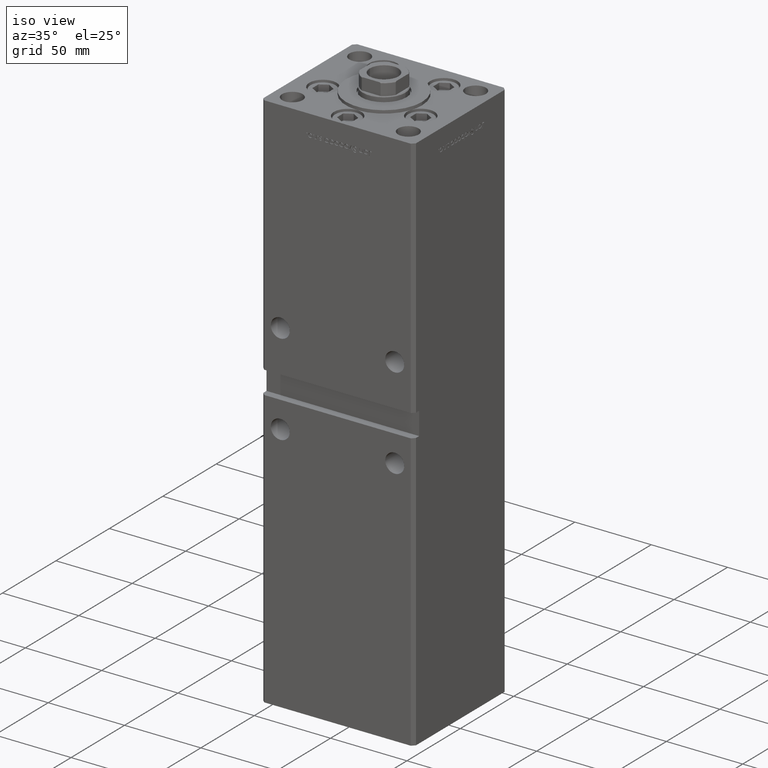
[diagram: clean part render]
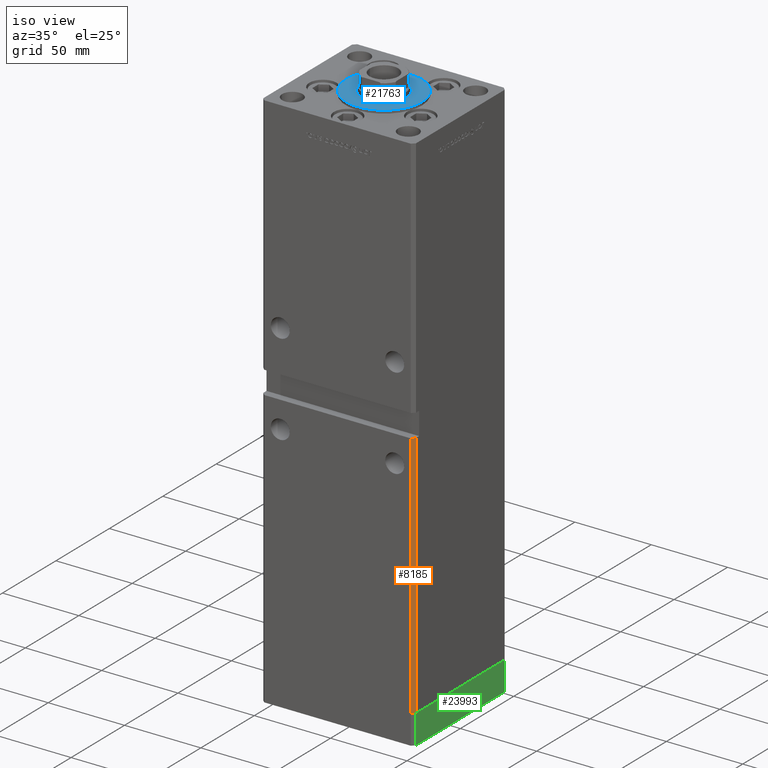
[diagram: same view with three faces highlighted in distinct colors, each labeled with its STEP entity id]
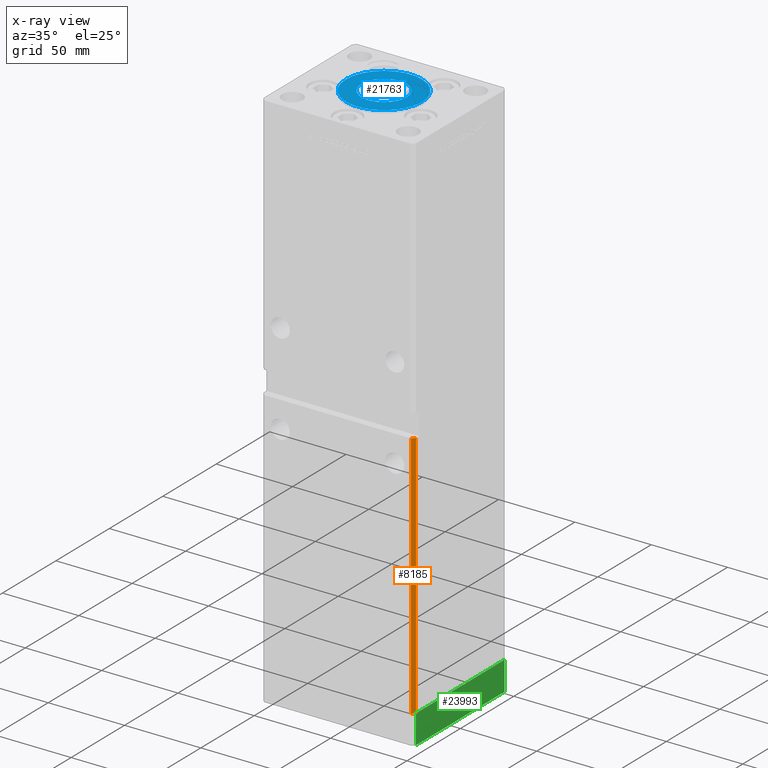
[diagram: x-ray of the same camera — body ghosted, the three highlighted faces saturated]
A machine part, iso view with three faces highlighted in distinct colors.
The next image is the same camera in x-ray (body ghosted, the three faces saturated) — at least one of them is partly hidden behind the body in this view.
Their STEP definitions:

[orange] entity #8185 — the highlighted planar face has unit normal (0.7071, -0.7071, 0).
#2131 = DIRECTION ( 'NONE',  ( 0.7071067811865474617, 0.7071067811865474617, 0.000000000000000000 ) ) ;
#2335 = EDGE_CURVE ( 'NONE', #51566, #43689, #5158, .T. ) ;
#2360 = CARTESIAN_POINT ( 'NONE',  ( 49.99999999999998579, -41.49999999999999289, 318.5000000000000000 ) ) ;
#3289 = EDGE_CURVE ( 'NONE', #38269, #43689, #29708, .T. ) ;
#5158 = LINE ( 'NONE', #41689, #15227 ) ;
#5377 = FACE_OUTER_BOUND ( 'NONE', #34178, .T. ) ;
#8185 = ADVANCED_FACE ( 'NONE', ( #5377 ), #38141, .T. ) ;
#10409 = ORIENTED_EDGE ( 'NONE', *, *, #2335, .F. ) ;
#12133 = VECTOR ( 'NONE', #46951, 1000.000000000000000 ) ;
#13702 = CARTESIAN_POINT ( 'NONE',  ( 49.99999999999998579, -41.49999999999999289, 318.5000000000000000 ) ) ;
#14230 = DIRECTION ( 'NONE',  ( 0.7071067811865475727, -0.7071067811865475727, 0.000000000000000000 ) ) ;
#15227 = VECTOR ( 'NONE', #45972, 1000.000000000000114 ) ;
#15268 = VECTOR ( 'NONE', #45819, 1000.000000000000000 ) ;
#17876 = AXIS2_PLACEMENT_3D ( 'NONE', #13702, #14230, #2131 ) ;
#17934 = EDGE_CURVE ( 'NONE', #38269, #39749, #35957, .T. ) ;
#20165 = ORIENTED_EDGE ( 'NONE', *, *, #38500, .F. ) ;
#23193 = ORIENTED_EDGE ( 'NONE', *, *, #17934, .F. ) ;
#24982 = VECTOR ( 'NONE', #39204, 1000.000000000000114 ) ;
#27245 = CARTESIAN_POINT ( 'NONE',  ( 49.99999999999998579, -41.49999999999999289, 0.000000000000000000 ) ) ;
#29708 = LINE ( 'NONE', #41540, #15268 ) ;
#30334 = CARTESIAN_POINT ( 'NONE',  ( 47.99999999999998579, -43.50000000000000000, 0.000000000000000000 ) ) ;
#30830 = LINE ( 'NONE', #2360, #12133 ) ;
#33911 = ORIENTED_EDGE ( 'NONE', *, *, #3289, .T. ) ;
#34178 = EDGE_LOOP ( 'NONE', ( #23193, #33911, #10409, #20165 ) ) ;
#35957 = LINE ( 'NONE', #39467, #24982 ) ;
#38141 = PLANE ( 'NONE',  #17876 ) ;
#38269 = VERTEX_POINT ( 'NONE', #50539 ) ;
#38500 = EDGE_CURVE ( 'NONE', #39749, #51566, #30830, .T. ) ;
#39204 = DIRECTION ( 'NONE',  ( 0.7071067811865474617, 0.7071067811865474617, 0.000000000000000000 ) ) ;
#39467 = CARTESIAN_POINT ( 'NONE',  ( 49.99999999999998579, -41.49999999999999289, 163.0000000000000000 ) ) ;
#39749 = VERTEX_POINT ( 'NONE', #47432 ) ;
#41540 = CARTESIAN_POINT ( 'NONE',  ( 47.99999999999998579, -43.50000000000000000, 318.5000000000000000 ) ) ;
#41689 = CARTESIAN_POINT ( 'NONE',  ( 49.99999999999998579, -41.49999999999999289, 0.000000000000000000 ) ) ;
#43689 = VERTEX_POINT ( 'NONE', #30334 ) ;
#45819 = DIRECTION ( 'NONE',  ( -0.000000000000000000, -0.000000000000000000, -1.000000000000000000 ) ) ;
#45972 = DIRECTION ( 'NONE',  ( -0.7071067811865474617, -0.7071067811865474617, 0.000000000000000000 ) ) ;
#46951 = DIRECTION ( 'NONE',  ( -0.000000000000000000, -0.000000000000000000, -1.000000000000000000 ) ) ;
#47432 = CARTESIAN_POINT ( 'NONE',  ( 50.00000000000000000, -41.49999999999999289, 163.0000000000000000 ) ) ;
#50539 = CARTESIAN_POINT ( 'NONE',  ( 47.99999999999995737, -43.50000000000000000, 163.0000000000000000 ) ) ;
#51566 = VERTEX_POINT ( 'NONE', #27245 ) ;

[blue] entity #21763 — the highlighted planar face has unit normal (0, 0, 1).
#1335 = ORIENTED_EDGE ( 'NONE', *, *, #31205, .T. ) ;
#2035 = VERTEX_POINT ( 'NONE', #30457 ) ;
#3477 = CIRCLE ( 'NONE', #35212, 14.75000000000000178 ) ;
#8061 = DIRECTION ( 'NONE',  ( 1.000000000000000000, 0.000000000000000000, 0.000000000000000000 ) ) ;
#8383 = DIRECTION ( 'NONE',  ( 0.000000000000000000, 0.000000000000000000, 1.000000000000000000 ) ) ;
#10516 = DIRECTION ( 'NONE',  ( 0.000000000000000000, 0.000000000000000000, 1.000000000000000000 ) ) ;
#13021 = FACE_OUTER_BOUND ( 'NONE', #46987, .T. ) ;
#13113 = CIRCLE ( 'NONE', #28425, 25.00000000000000000 ) ;
#13563 = FACE_BOUND ( 'NONE', #27568, .T. ) ;
#14075 = AXIS2_PLACEMENT_3D ( 'NONE', #32020, #8383, #36049 ) ;
#14713 = AXIS2_PLACEMENT_3D ( 'NONE', #50622, #37719, #30462 ) ;
#15029 = VERTEX_POINT ( 'NONE', #47415 ) ;
#15157 = EDGE_CURVE ( 'NONE', #15029, #31400, #3477, .T. ) ;
#16123 = DIRECTION ( 'NONE',  ( 0.000000000000000000, 0.000000000000000000, 1.000000000000000000 ) ) ;
#16416 = VERTEX_POINT ( 'NONE', #45969 ) ;
#17303 = CARTESIAN_POINT ( 'NONE',  ( 0.000000000000000000, -6.938893903907228378E-15, 2.000000000000000000 ) ) ;
#19824 = CARTESIAN_POINT ( 'NONE',  ( 14.75000000000000178, -6.938893903907228378E-15, 2.000000000000000000 ) ) ;
#21763 = ADVANCED_FACE ( 'NONE', ( #13563, #13021 ), #50091, .T. ) ;
#22286 = EDGE_CURVE ( 'NONE', #2035, #16416, #13113, .T. ) ;
#22606 = ORIENTED_EDGE ( 'NONE', *, *, #22286, .T. ) ;
#22858 = CARTESIAN_POINT ( 'NONE',  ( 0.000000000000000000, -6.938893903907228378E-15, 2.000000000000000000 ) ) ;
#27568 = EDGE_LOOP ( 'NONE', ( #42517, #31921 ) ) ;
#27907 = EDGE_CURVE ( 'NONE', #31400, #15029, #50924, .T. ) ;
#28425 = AXIS2_PLACEMENT_3D ( 'NONE', #40829, #16123, #8061 ) ;
#30457 = CARTESIAN_POINT ( 'NONE',  ( 25.00000000000000000, -3.877276906038844941E-15, 2.000000000000000000 ) ) ;
#30462 = DIRECTION ( 'NONE',  ( 1.000000000000000000, 0.000000000000000000, -0.000000000000000000 ) ) ;
#31205 = EDGE_CURVE ( 'NONE', #16416, #2035, #44244, .T. ) ;
#31400 = VERTEX_POINT ( 'NONE', #19824 ) ;
#31921 = ORIENTED_EDGE ( 'NONE', *, *, #15157, .F. ) ;
#32020 = CARTESIAN_POINT ( 'NONE',  ( 0.000000000000000000, -6.938893903907228378E-15, 2.000000000000000000 ) ) ;
#34200 = DIRECTION ( 'NONE',  ( 1.000000000000000000, 0.000000000000000000, 0.000000000000000000 ) ) ;
#35212 = AXIS2_PLACEMENT_3D ( 'NONE', #17303, #37975, #34200 ) ;
#36049 = DIRECTION ( 'NONE',  ( 1.000000000000000000, 0.000000000000000000, 0.000000000000000000 ) ) ;
#37719 = DIRECTION ( 'NONE',  ( 0.000000000000000000, 0.000000000000000000, 1.000000000000000000 ) ) ;
#37975 = DIRECTION ( 'NONE',  ( 0.000000000000000000, 0.000000000000000000, 1.000000000000000000 ) ) ;
#40829 = CARTESIAN_POINT ( 'NONE',  ( 0.000000000000000000, -6.938893903907228378E-15, 2.000000000000000000 ) ) ;
#42517 = ORIENTED_EDGE ( 'NONE', *, *, #27907, .F. ) ;
#44244 = CIRCLE ( 'NONE', #51129, 25.00000000000000000 ) ;
#45969 = CARTESIAN_POINT ( 'NONE',  ( -25.00000000000000000, -6.938893903907228378E-15, 2.000000000000000000 ) ) ;
#46987 = EDGE_LOOP ( 'NONE', ( #1335, #22606 ) ) ;
#47415 = CARTESIAN_POINT ( 'NONE',  ( -14.75000000000000178, -5.132539875164881787E-15, 2.000000000000000000 ) ) ;
#50091 = PLANE ( 'NONE',  #14713 ) ;
#50622 = CARTESIAN_POINT ( 'NONE',  ( 0.000000000000000000, -6.938893903907228378E-15, 2.000000000000000000 ) ) ;
#50819 = DIRECTION ( 'NONE',  ( 1.000000000000000000, 0.000000000000000000, 0.000000000000000000 ) ) ;
#50924 = CIRCLE ( 'NONE', #14075, 14.75000000000000178 ) ;
#51129 = AXIS2_PLACEMENT_3D ( 'NONE', #22858, #10516, #50819 ) ;

[green] entity #23993 — the highlighted planar face has unit normal (1, 0, 0).
#2489 = DIRECTION ( 'NONE',  ( 8.360113137237628665E-17, -1.000000000000000000, 0.000000000000000000 ) ) ;
#4114 = VERTEX_POINT ( 'NONE', #30379 ) ;
#8733 = VECTOR ( 'NONE', #38554, 1000.000000000000000 ) ;
#10265 = VERTEX_POINT ( 'NONE', #39693 ) ;
#10389 = VECTOR ( 'NONE', #30287, 1000.000000000000000 ) ;
#10827 = LINE ( 'NONE', #51390, #35552 ) ;
#11236 = LINE ( 'NONE', #37446, #17478 ) ;
#11502 = DIRECTION ( 'NONE',  ( 0.000000000000000000, 0.000000000000000000, 1.000000000000000000 ) ) ;
#12463 = CARTESIAN_POINT ( 'NONE',  ( -50.00000000000000000, -41.50000000000000000, 0.000000000000000000 ) ) ;
#14382 = LINE ( 'NONE', #39347, #8733 ) ;
#17283 = EDGE_CURVE ( 'NONE', #4114, #18651, #17406, .T. ) ;
#17406 = LINE ( 'NONE', #33775, #10389 ) ;
#17478 = VECTOR ( 'NONE', #11502, 1000.000000000000000 ) ;
#18489 = EDGE_CURVE ( 'NONE', #10265, #18651, #14382, .T. ) ;
#18651 = VERTEX_POINT ( 'NONE', #12463 ) ;
#21249 = ORIENTED_EDGE ( 'NONE', *, *, #17283, .T. ) ;
#23993 = ADVANCED_FACE ( 'NONE', ( #39789 ), #26907, .T. ) ;
#26907 = PLANE ( 'NONE',  #52518 ) ;
#28470 = EDGE_CURVE ( 'NONE', #48656, #10265, #11236, .T. ) ;
#30287 = DIRECTION ( 'NONE',  ( 0.000000000000000000, 0.000000000000000000, 1.000000000000000000 ) ) ;
#30379 = CARTESIAN_POINT ( 'NONE',  ( -50.00000000000000000, -41.50000000000000000, -19.00000000000000000 ) ) ;
#31789 = CARTESIAN_POINT ( 'NONE',  ( -50.00000000000000711, 41.49999999999995026, -19.00000000000000000 ) ) ;
#33775 = CARTESIAN_POINT ( 'NONE',  ( -50.00000000000000000, -41.50000000000000000, -19.00000000000000000 ) ) ;
#35552 = VECTOR ( 'NONE', #2489, 1000.000000000000000 ) ;
#37353 = ORIENTED_EDGE ( 'NONE', *, *, #46442, .T. ) ;
#37446 = CARTESIAN_POINT ( 'NONE',  ( -50.00000000000000711, 41.49999999999995026, -19.00000000000000000 ) ) ;
#38554 = DIRECTION ( 'NONE',  ( 8.360113137237628665E-17, -1.000000000000000000, 0.000000000000000000 ) ) ;
#39347 = CARTESIAN_POINT ( 'NONE',  ( -50.00000000000000711, 41.49999999999995026, 0.000000000000000000 ) ) ;
#39693 = CARTESIAN_POINT ( 'NONE',  ( -50.00000000000000711, 41.49999999999995026, 0.000000000000000000 ) ) ;
#39789 = FACE_OUTER_BOUND ( 'NONE', #42503, .T. ) ;
#42503 = EDGE_LOOP ( 'NONE', ( #51992, #42768, #37353, #21249 ) ) ;
#42768 = ORIENTED_EDGE ( 'NONE', *, *, #28470, .F. ) ;
#46442 = EDGE_CURVE ( 'NONE', #48656, #4114, #10827, .T. ) ;
#48374 = DIRECTION ( 'NONE',  ( -1.000000000000000000, -8.360113137237628665E-17, 0.000000000000000000 ) ) ;
#48656 = VERTEX_POINT ( 'NONE', #31789 ) ;
#51390 = CARTESIAN_POINT ( 'NONE',  ( -50.00000000000000711, 41.49999999999995026, -19.00000000000000000 ) ) ;
#51621 = CARTESIAN_POINT ( 'NONE',  ( -50.00000000000000711, 41.49999999999995026, -19.00000000000000000 ) ) ;
#51992 = ORIENTED_EDGE ( 'NONE', *, *, #18489, .F. ) ;
#52409 = DIRECTION ( 'NONE',  ( 8.360113137237628665E-17, -1.000000000000000000, 0.000000000000000000 ) ) ;
#52518 = AXIS2_PLACEMENT_3D ( 'NONE', #51621, #48374, #52409 ) ;